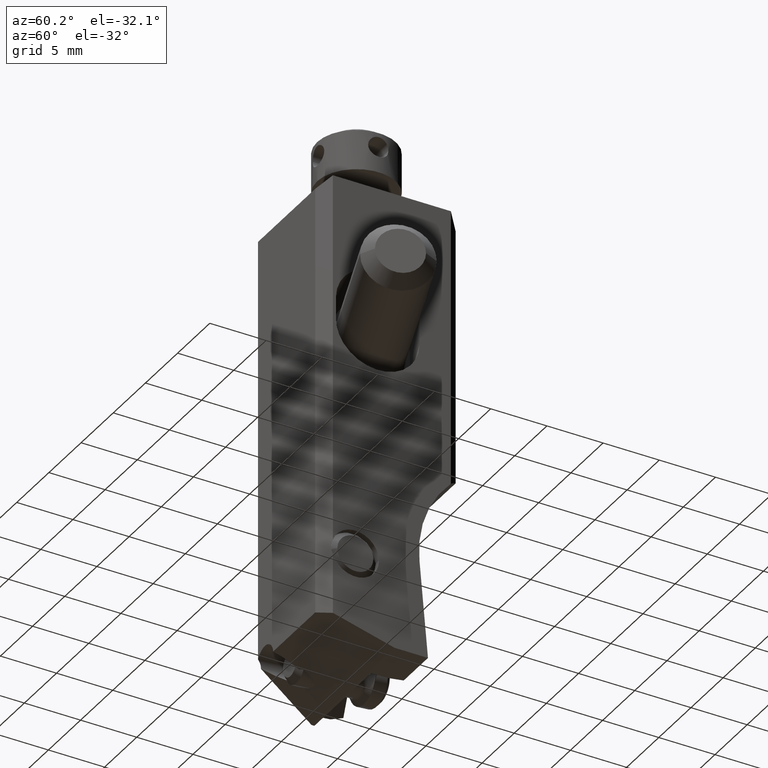
[diagram: clean part render]
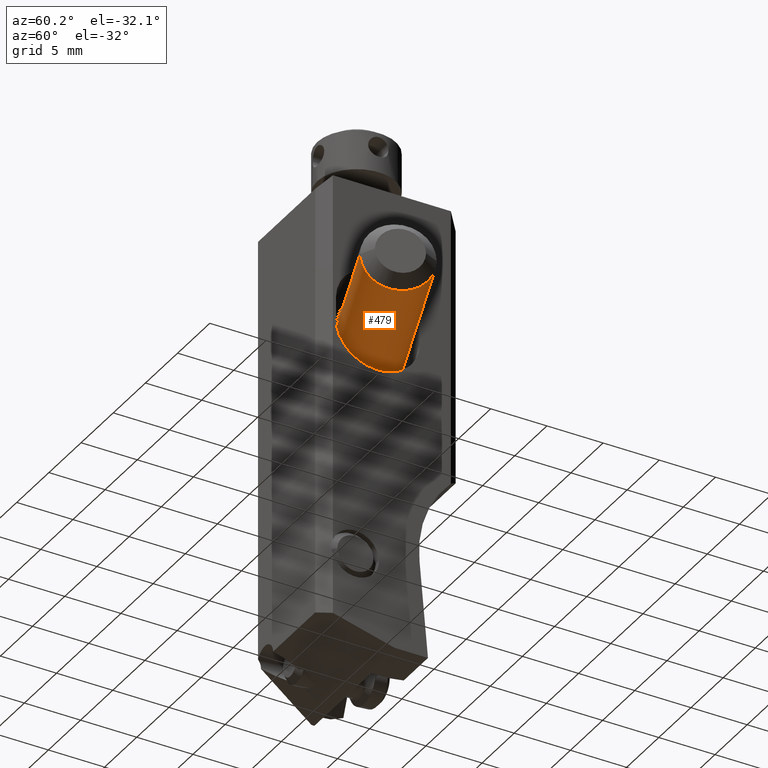
[diagram: same view with one face highlighted and labeled with its STEP entity id]
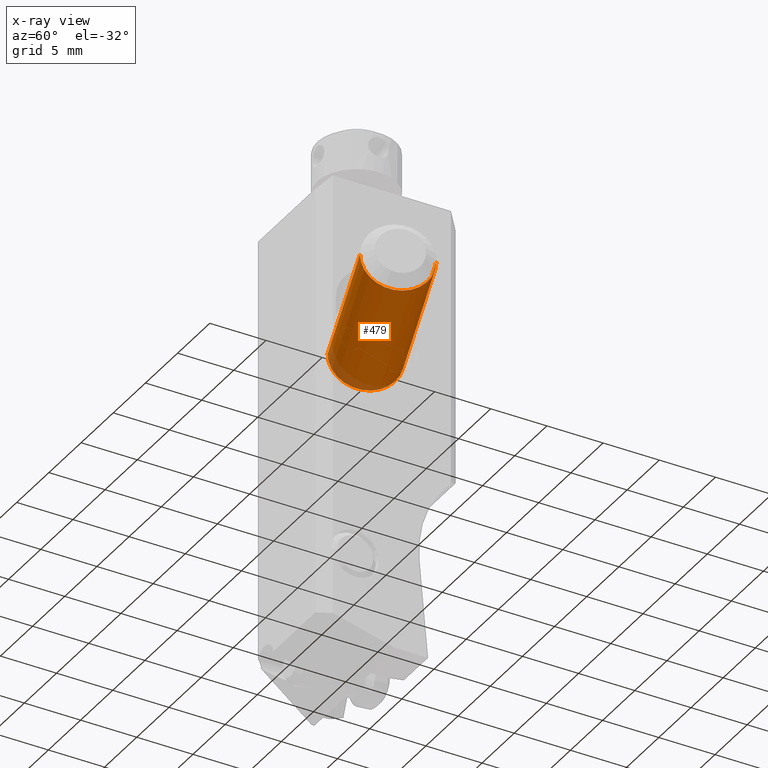
[diagram: x-ray of the same camera — body ghosted, the highlighted face saturated]
A machine part, auxiliary view. The second image highlights one B-rep face of the part: STEP entity #479.
The next image is the same camera in x-ray: the body ghosted, the highlighted face saturated — about 7% of this face is hidden behind the body in this view.
In plain terms, the highlighted cylindrical surface (partial cylindrical patch) has radius 3 mm, axis along (0.9397, -0.342, 0).
Its self-contained STEP definition (entity closure, byte-faithful):
#215=CYLINDRICAL_SURFACE('',#2973,2.999999999981);
#339=CIRCLE('',#2966,2.999999999981);
#342=CIRCLE('',#2972,2.999999999999);
#479=ADVANCED_FACE('',(#662),#215,.T.);
#662=FACE_OUTER_BOUND('',#811,.T.);
#811=EDGE_LOOP('',(#1538,#1539,#1540,#1541));
#1538=ORIENTED_EDGE('',*,*,#2192,.F.);
#1539=ORIENTED_EDGE('',*,*,#2196,.F.);
#1540=ORIENTED_EDGE('',*,*,#2198,.T.);
#1541=ORIENTED_EDGE('',*,*,#2197,.F.);
#1828=VERTEX_POINT('',#5318);
#1829=VERTEX_POINT('',#5320);
#1830=VERTEX_POINT('',#5326);
#1831=VERTEX_POINT('',#5327);
#2192=EDGE_CURVE('',#1828,#1829,#339,.T.);
#2196=EDGE_CURVE('',#1831,#1828,#2386,.T.);
#2197=EDGE_CURVE('',#1829,#1830,#2387,.T.);
#2198=EDGE_CURVE('',#1831,#1830,#342,.T.);
#2386=LINE('',#5328,#2565);
#2387=LINE('',#5329,#2566);
#2565=VECTOR('',#3734,1.);
#2566=VECTOR('',#3735,1.);
#2966=AXIS2_PLACEMENT_3D('',#5319,#3723,#3724);
#2972=AXIS2_PLACEMENT_3D('',#5331,#3738,#3739);
#2973=AXIS2_PLACEMENT_3D('',#5332,#3740,#3741);
#3723=DIRECTION('',(0.939692620785421,-0.342020143327008,0.));
#3724=DIRECTION('',(-0.342020143327008,-0.939692620785421,0.));
#3734=DIRECTION('',(0.939692620785649,-0.342020143326381,0.));
#3735=DIRECTION('',(-0.939692620785529,0.342020143326711,0.));
#3738=DIRECTION('',(0.939692620785822,-0.342020143325908,0.));
#3739=DIRECTION('',(-0.342020143325908,-0.939692620785822,0.));
#3740=DIRECTION('',(0.939692620785421,-0.342020143327008,0.));
#3741=DIRECTION('',(0.342020143327008,0.939692620785421,0.));
#5318=CARTESIAN_POINT('',(7.707484606524,-0.9978282952733,-12.));
#5319=CARTESIAN_POINT('',(8.733545036494,1.821249567061,-12.));
#5320=CARTESIAN_POINT('',(9.759605466468,4.640327429419,-12.));
#5326=CARTESIAN_POINT('',(-4.100860690116,9.685124543487,-12.));
#5327=CARTESIAN_POINT('',(-6.152981550064,4.04696881879,-12.));
#5328=CARTESIAN_POINT('',(-6.152981550064,4.04696881879,-12.));
#5329=CARTESIAN_POINT('',(9.759605466468,4.640327429419,-12.));
#5331=CARTESIAN_POINT('',(-5.126921120087,6.866046681143,-12.));
#5332=CARTESIAN_POINT('',(-5.404130443219,6.966942623414,-12.));